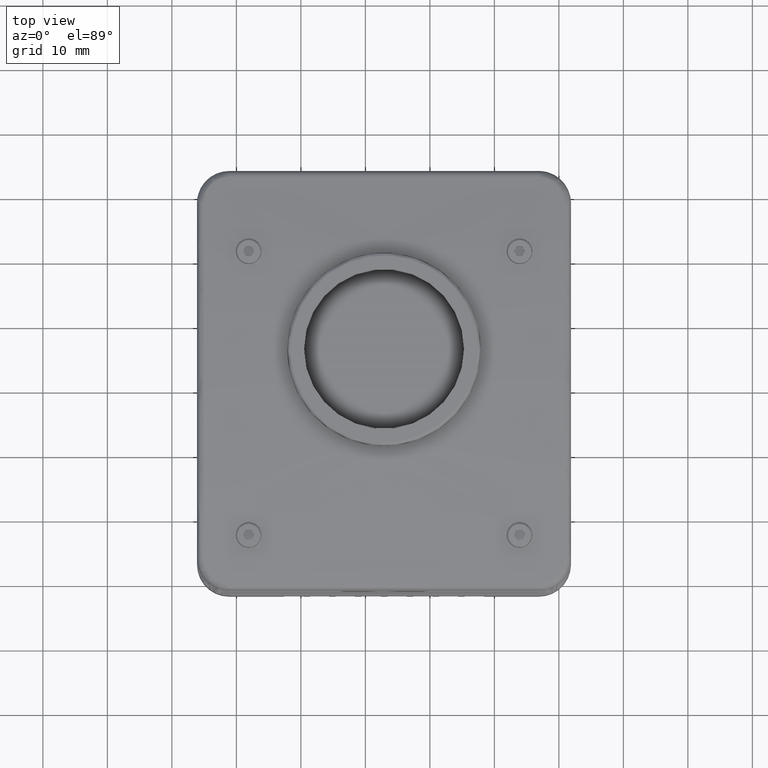
[diagram: clean part render]
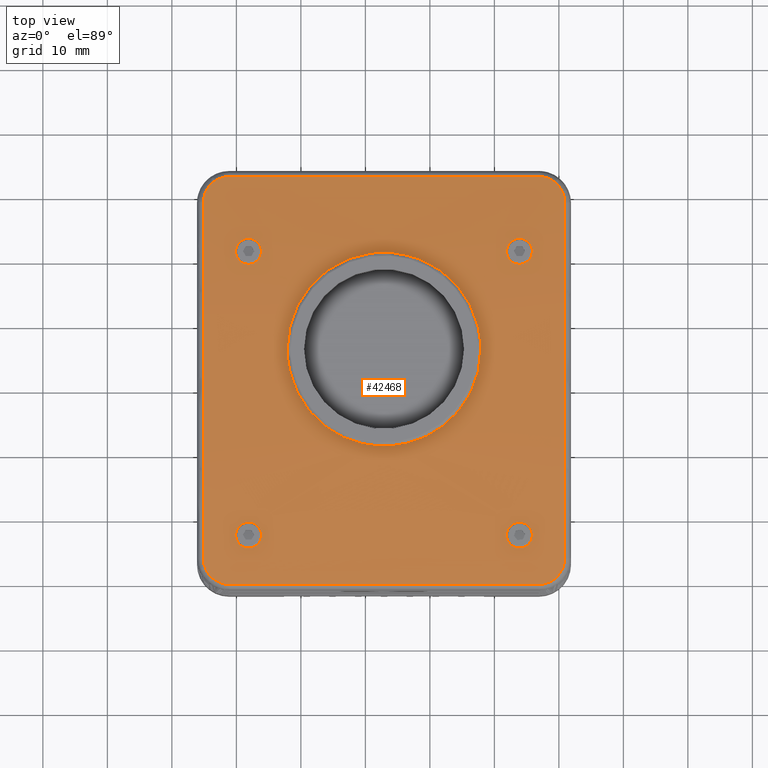
[diagram: same view with one face highlighted and labeled with its STEP entity id]
A machine part, top view. The second image highlights one B-rep face of the part: STEP entity #42468.
In plain terms, the highlighted cylindrical surface (partial cylindrical patch) has radius 246.258 mm, axis along (1, 0, 0).
Its self-contained STEP definition (entity closure, byte-faithful):
#164 = CARTESIAN_POINT ( 'NONE',  ( 17.15199838091619000, -30.88185653860557522, 12.61445700249528024 ) ) ;
#643 = CARTESIAN_POINT ( 'NONE',  ( 12.65794553003132172, -24.85439912461129097, 13.31973789905160999 ) ) ;
#1061 = CARTESIAN_POINT ( 'NONE',  ( 6.335961624409518045, 12.19117774641870078, 14.38803534355767155 ) ) ;
#1711 = CARTESIAN_POINT ( 'NONE',  ( 20.88553785810800179, -26.86554721807585366, 13.10109325036892081 ) ) ;
#1765 = CARTESIAN_POINT ( 'NONE',  ( 15.11676629128098881, 19.14904862155982812, 13.96553119237063179 ) ) ;
#2154 = CARTESIAN_POINT ( 'NONE',  ( 11.93626400583478109, 20.22629602186786713, 13.88248107598919923 ) ) ;
#2289 = CARTESIAN_POINT ( 'NONE',  ( -30.11446214189199821, -23.25342063943100257, 13.48172338023551653 ) ) ;
#2487 = CARTESIAN_POINT ( 'NONE',  ( -26.88323370860873140, 19.14904862163383470, 13.96553119236502916 ) ) ;
#2682 = CARTESIAN_POINT ( 'NONE',  ( -28.63454206280629677, -25.20272848704888702, 13.28302671401471535 ) ) ;
#2734 = CARTESIAN_POINT ( 'NONE',  ( -33.76312621731929653, 31.37998222078914523, 12.74133567024515301 ) ) ;
#2791 = CARTESIAN_POINT ( 'NONE',  ( 7.322697038092282895, 1.423764651721037833, 14.65386630403277124 ) ) ;
#3096 = ORIENTED_EDGE ( 'NONE', *, *, #36131, .T. ) ;
#3176 = CARTESIAN_POINT ( 'NONE',  ( -10.99355484725107424, -8.951581931478942877, 14.46301633084969041 ) ) ;
#3383 = CARTESIAN_POINT ( 'NONE',  ( -26.88705915811398128, -21.65228337191254226, 13.63330965593219446 ) ) ;
#3565 = CARTESIAN_POINT ( 'NONE',  ( -21.77427582853673727, 2.360495848392195839, 14.64884740615454284 ) ) ;
#3833 = CARTESIAN_POINT ( 'NONE',  ( -32.90221694859462076, -30.46834931190274887, 12.66767608023455693 ) ) ;
#3960 = CARTESIAN_POINT ( 'NONE',  ( -35.11446214189199821, 0.7465793605689886592, -231.6045150059094908 ) ) ;
#3964 = CARTESIAN_POINT ( 'NONE',  ( -11.92681194854243998, -8.662756242559215281, 14.47420293897796206 ) ) ;
#4350 = CARTESIAN_POINT ( 'NONE',  ( -6.123836369265465152, -9.428819727217717883, 14.44370754604598162 ) ) ;
#4356 = EDGE_CURVE ( 'NONE', #70281, #48283, #22813, .T. ) ;
#4508 = AXIS2_PLACEMENT_3D ( 'NONE', #56930, #69220, #75187 ) ;
#4671 = CARTESIAN_POINT ( 'NONE',  ( 0.8062653328078575043, 18.29426577951470634, 14.02817385190907018 ) ) ;
#4722 = DIRECTION ( 'NONE',  ( 1.000000000000000000, 1.690636389360119870E-16, 0.000000000000000000 ) ) ;
#4756 = ORIENTED_EDGE ( 'NONE', *, *, #7954, .T. ) ;
#4757 = CARTESIAN_POINT ( 'NONE',  ( 12.56324765355891060, -21.74704678343643849, 13.62458177239563994 ) ) ;
#4836 = EDGE_CURVE ( 'NONE', #69498, #75149, #38759, .T. ) ;
#5066 = CARTESIAN_POINT ( 'NONE',  ( -9.079484532985620859, 20.42553410460161700, 13.86647172096069092 ) ) ;
#5118 = CARTESIAN_POINT ( 'NONE',  ( 18.67329266487444528, 31.96150803304125532, 12.66767608023446812 ) ) ;
#5549 = CARTESIAN_POINT ( 'NONE',  ( 11.93612170713564247, -22.73400636534372765, 13.53215451562674509 ) ) ;
#5818 = CARTESIAN_POINT ( 'NONE',  ( 15.63269430762037615, -24.26217958315425705, 13.38096758599570713 ) ) ;
#5856 = CARTESIAN_POINT ( 'NONE',  ( 7.490287895379887040, 8.969698087180830726, 14.51671294469376861 ) ) ;
#6234 = ORIENTED_EDGE ( 'NONE', *, *, #4356, .T. ) ;
#6248 = CARTESIAN_POINT ( 'NONE',  ( 7.885537858108126130, 6.537583653873920930, 14.58791172228698052 ) ) ;
#6502 = CARTESIAN_POINT ( 'NONE',  ( 19.53420193358178381, -29.88682349958662954, 12.74133567025318037 ) ) ;
#7327 = CARTESIAN_POINT ( 'NONE',  ( 12.87563956458990688, 18.99996234278706453, 13.97660926542275384 ) ) ;
#7370 = CARTESIAN_POINT ( 'NONE',  ( 11.88553785810800001, -23.25342063943100257, 13.48172338023550054 ) ) ;
#7579 = EDGE_CURVE ( 'NONE', #53040, #45356, #46548, .T. ) ;
#7590 = CARTESIAN_POINT ( 'NONE',  ( 20.88553785810800179, -26.86554721807585366, 13.10109325036892081 ) ) ;
#7954 = EDGE_CURVE ( 'NONE', #60504, #50791, #52769, .T. ) ;
#8122 = CARTESIAN_POINT ( 'NONE',  ( 15.62164353065563382, 19.74441562739599121, 13.92014407035631862 ) ) ;
#8160 = CARTESIAN_POINT ( 'NONE',  ( -28.24854630498047214, 22.74644542163443006, 13.66935261879958219 ) ) ;
#8184 = CARTESIAN_POINT ( 'NONE',  ( -28.37713237199256611, -21.26658629709161019, 13.66816072830677165 ) ) ;
#8543 = CARTESIAN_POINT ( 'NONE',  ( -26.51266042314099991, 21.97319806449482726, 13.73755293835787228 ) ) ;
#8753 = CARTESIAN_POINT ( 'NONE',  ( 7.861565506491455579, 4.565026695098848286, 14.62489261526215145 ) ) ;
#8945 = CARTESIAN_POINT ( 'NONE',  ( -26.11446214189199466, 21.01180187585333314, 13.81890647769380642 ) ) ;
#9151 = CARTESIAN_POINT ( 'NONE',  ( -6.610735961794727444, -9.453063464431997076, 14.44269902554001384 ) ) ;
#9227 = CARTESIAN_POINT ( 'NONE',  ( -29.71622873475155657, 19.51989991411704040, 13.93746109433174318 ) ) ;
#9348 = CARTESIAN_POINT ( 'NONE',  ( -28.24862981131195738, -21.25355597667520158, 13.66932846589540951 ) ) ;
#9416 = CARTESIAN_POINT ( 'NONE',  ( -26.79205649417967905, -24.75969375862645094, 13.32956424362680004 ) ) ;
#9530 = CARTESIAN_POINT ( 'NONE',  ( 5.879943274413033549, -1.950711174523080738, 14.63933341548701250 ) ) ;
#9616 = CARTESIAN_POINT ( 'NONE',  ( -27.59316495342199715, 18.81150551277001881, 13.99052436459692927 ) ) ;
#9850 = CARTESIAN_POINT ( 'NONE',  ( -19.02396187249625115, 14.67950498799824466, 14.25984290094675444 ) ) ;
#9930 = CARTESIAN_POINT ( 'NONE',  ( -22.01726605236193279, 3.574745141578771879, 14.63969181953972942 ) ) ;
#10014 = CARTESIAN_POINT ( 'NONE',  ( -30.06373599416532372, 20.22629602186784581, 13.88248107598919034 ) ) ;
#10204 = CARTESIAN_POINT ( 'NONE',  ( -31.11446214189200177, 32.37501525974400352, 12.61445700249543478 ) ) ;
#10245 = CARTESIAN_POINT ( 'NONE',  ( -5.406025436937152762, 20.45117154328260156, 13.86441148440409421 ) ) ;
#10321 = CARTESIAN_POINT ( 'NONE',  ( -21.40545054606002751, 0.9430627392676171894, 14.65471727091783016 ) ) ;
#10440 = B_SPLINE_CURVE_WITH_KNOTS ( 'NONE', 3,
 ( #51152, #32882, #76147, #20175, #21338, #9416, #51539, #38447, #13818, #50767, #50366, #45567, #57495, #44402, #68626, #2682, #26135, #69786, #33273, #39225, #14595, #75752, #2289 ),
 .UNSPECIFIED., .F., .F.,
 ( 4, 2, 2, 1, 2, 2, 2, 2, 2, 2, 2, 4 ),
 ( 0.000000000000000000, 0.1250000000000029421, 0.2500000000000058842, 0.3125000000000067724, 0.3437500000000074940, 0.3750000000000081601, 0.4375000000000079936, 0.5000000000000078826, 0.6250000000000058842, 0.7500000000000039968, 0.8750000000000019984, 1.000000000000000000 ),
 .UNSPECIFIED. ) ;
#10633 = CARTESIAN_POINT ( 'NONE',  ( -21.55144190988290731, 9.670009462541417022, 14.49307085553406615 ) ) ;
#10692 = CARTESIAN_POINT ( 'NONE',  ( 20.88553785810811902, 28.88869422153059219, 13.04129035643093104 ) ) ;
#10713 = CARTESIAN_POINT ( 'NONE',  ( 15.11248853613317067, 22.34806247194847373, 13.70483168141129759 ) ) ;
#10727 = CARTESIAN_POINT ( 'NONE',  ( 15.88553785810811370, -22.98839215172527872, 13.50767621931274753 ) ) ;
#11029 = CARTESIAN_POINT ( 'NONE',  ( -22.11446214189200532, 6.038658297745903347, 14.59763847879172616 ) ) ;
#11399 = ORIENTED_EDGE ( 'NONE', *, *, #7579, .T. ) ;
#11431 = CARTESIAN_POINT ( 'NONE',  ( -11.94423410705991095, 19.75640826646858272, 13.91923354840987770 ) ) ;
#11487 = CARTESIAN_POINT ( 'NONE',  ( 20.78517581521157354, 29.39825597489105036, 12.98205430953047745 ) ) ;
#11511 = CARTESIAN_POINT ( 'NONE',  ( 14.40520700624624162, 22.69598592833485640, 13.67389449438724647 ) ) ;
#11903 = CARTESIAN_POINT ( 'NONE',  ( 15.48733957685904095, 21.97319806449482371, 13.73755293835786873 ) ) ;
#12947 = CARTESIAN_POINT ( 'NONE',  ( 14.14830062729505222, -25.24024324026770927, 13.27902870077937614 ) ) ;
#13099 = CARTESIAN_POINT ( 'NONE',  ( -32.40758804377266245, 32.16863089156166211, 12.64111868462813959 ) ) ;
#13249 = ORIENTED_EDGE ( 'NONE', *, *, #68644, .T. ) ;
#13818 = CARTESIAN_POINT ( 'NONE',  ( -27.22602872122805806, -25.04656791227461454, 13.29950448184490597 ) ) ;
#14190 = CARTESIAN_POINT ( 'NONE',  ( -35.11446214189199821, -26.86554721807585366, 13.10109325036892081 ) ) ;
#14595 = CARTESIAN_POINT ( 'NONE',  ( -30.06379791169468163, -23.77338601145520869, 13.43037247880783447 ) ) ;
#14647 = EDGE_LOOP ( 'NONE', ( #39484, #62179 ) ) ;
#14890 = CARTESIAN_POINT ( 'NONE',  ( -30.11446214189199821, 20.74657936056900098, 13.84051803870175945 ) ) ;
#14915 = CARTESIAN_POINT ( 'NONE',  ( -29.28552137775373509, -21.62238755652164457, 13.63598384088435367 ) ) ;
#15098 = CARTESIAN_POINT ( 'NONE',  ( -13.29879689029108469, -8.128128570800265962, 14.49412241493211440 ) ) ;
#15288 = CARTESIAN_POINT ( 'NONE',  ( -26.16519160709472658, 21.26687967508733479, 13.79768943889806998 ) ) ;
#15494 = CARTESIAN_POINT ( 'NONE',  ( -16.26008846788379003, -6.383431346900523273, 14.55138187112343928 ) ) ;
#15752 = CARTESIAN_POINT ( 'NONE',  ( -33.56304871490326036, -30.05311541163308675, 12.72040113686296792 ) ) ;
#15805 = CARTESIAN_POINT ( 'NONE',  ( -12.40650286088789755, 19.59070527818143859, 13.93203834102146743 ) ) ;
#15876 = CARTESIAN_POINT ( 'NONE',  ( 5.087267682193576057, -3.191931846243637239, 14.62286152841007514 ) ) ;
#16081 = CARTESIAN_POINT ( 'NONE',  ( -26.11446214189199821, -23.25342063943100257, 13.48172338023549521 ) ) ;
#16182 = CARTESIAN_POINT ( 'NONE',  ( -7.618708918039962086, 20.54621195123688793, 13.85676258320007470 ) ) ;
#16257 = CARTESIAN_POINT ( 'NONE',  ( -11.69478663003139829, -8.739268991810686060, 14.47126182592676180 ) ) ;
#16276 = CARTESIAN_POINT ( 'NONE',  ( 12.13837892971137755, -22.24465538133308584, 13.57853452073613276 ) ) ;
#16586 = CARTESIAN_POINT ( 'NONE',  ( -1.839977116306682703, 19.59730376118211481, 13.93153153486985829 ) ) ;
#16657 = CARTESIAN_POINT ( 'NONE',  ( -7.597756725649859710, -9.453770856926839272, 14.44266970026825625 ) ) ;
#16674 = CARTESIAN_POINT ( 'NONE',  ( 12.88199062972224773, -21.52184922864169891, 13.64511759909474620 ) ) ;
#16968 = CARTESIAN_POINT ( 'NONE',  ( -19.72755757046574132, 13.66880964892277106, 14.31482632951563083 ) ) ;
#17054 = CARTESIAN_POINT ( 'NONE',  ( 15.63189053209442925, 21.75675906836380946, 13.75623372952968282 ) ) ;
#17419 = CARTESIAN_POINT ( 'NONE',  ( 17.93384535730843510, 32.27165745080374393, 12.62790944425775308 ) ) ;
#17736 = CARTESIAN_POINT ( 'NONE',  ( 12.13885900909444615, -24.26298981667418886, 13.38088504083211028 ) ) ;
#17854 = CARTESIAN_POINT ( 'NONE',  ( 12.08807199014757572, 21.63353172705940253, 13.76666207485487980 ) ) ;
#17922 = EDGE_CURVE ( 'NONE', #44327, #29170, #51756, .T. ) ;
#18167 = CARTESIAN_POINT ( 'NONE',  ( 7.544189990208258756, 8.730802566024658873, 14.52457857977417532 ) ) ;
#18224 = FACE_OUTER_BOUND ( 'NONE', #75816, .T. ) ;
#18253 = CARTESIAN_POINT ( 'NONE',  ( 12.65419127001136523, 22.34401626471992586, 13.70518567532502807 ) ) ;
#18422 = CARTESIAN_POINT ( 'NONE',  ( 17.92606790863656130, -30.75321344962674885, 12.63108844143563481 ) ) ;
#18811 = CARTESIAN_POINT ( 'NONE',  ( 19.33129599848362901, -30.05529919334043498, 12.72012577323138771 ) ) ;
#19013 = CARTESIAN_POINT ( 'NONE',  ( -101.1501430122208944, 32.37501525974400352, 12.61445700249543478 ) ) ;
#19582 = CARTESIAN_POINT ( 'NONE',  ( 20.88553785810812968, -27.39697600094394403, 13.04112781302277035 ) ) ;
#19636 = CARTESIAN_POINT ( 'NONE',  ( 11.88553785810811370, 20.48137096135847557, 13.86212844946607525 ) ) ;
#19678 = CARTESIAN_POINT ( 'NONE',  ( -28.37700165758149140, 22.73342756399959441, 13.67052128795805999 ) ) ;
#20075 = CARTESIAN_POINT ( 'NONE',  ( -28.63591578181628705, 22.68161144188935907, 13.67516065122723923 ) ) ;
#20175 = CARTESIAN_POINT ( 'NONE',  ( -26.36730569237961674, -24.26217958315426060, 13.38096758599570713 ) ) ;
#20229 = CARTESIAN_POINT ( 'NONE',  ( -32.15499219249225860, 32.24637217076520557, 12.63108844143556553 ) ) ;
#20288 = CARTESIAN_POINT ( 'NONE',  ( 7.885537858107999121, 5.546579360568999029, 14.60723176152298564 ) ) ;
#20428 = CARTESIAN_POINT ( 'NONE',  ( 15.88553785810800001, 20.74657936056900098, 13.84051803870174169 ) ) ;
#20468 = CARTESIAN_POINT ( 'NONE',  ( -27.10445442481185196, 22.49312851329497676, 13.69196319061991041 ) ) ;
#20621 = VERTEX_POINT ( 'NONE', #44178 ) ;
#21059 = CARTESIAN_POINT ( 'NONE',  ( 4.794455624164028151, -3.587115101467619915, 14.61617392486479616 ) ) ;
#21138 = CARTESIAN_POINT ( 'NONE',  ( -26.16515614825689795, 20.22671393786479399, 13.88244769760751218 ) ) ;
#21338 = CARTESIAN_POINT ( 'NONE',  ( -26.51130998088776280, -24.47818563257106561, 13.35877015581990257 ) ) ;
#21445 = CARTESIAN_POINT ( 'NONE',  ( -13.74335697229365927, -7.918350052617787682, 14.50163435386849642 ) ) ;
#21533 = CARTESIAN_POINT ( 'NONE',  ( -28.63395035727551630, 18.79712049893626258, 13.99160172495246535 ) ) ;
#21840 = CARTESIAN_POINT ( 'NONE',  ( -8.088987706960820034, -9.429977719454715412, 14.44365961541502585 ) ) ;
#21842 = EDGE_LOOP ( 'NONE', ( #13249, #50837 ) ) ;
#22097 = CARTESIAN_POINT ( 'NONE',  ( -34.32536497711599566, -29.31908726829677292, 12.81206560506424097 ) ) ;
#22151 = CARTESIAN_POINT ( 'NONE',  ( -20.47005705179707391, 12.40606020187249037, 14.37849974506584161 ) ) ;
#22224 = CARTESIAN_POINT ( 'NONE',  ( 3.665459886051812166, -4.886707662662128193, 14.58963700821765563 ) ) ;
#22241 = CARTESIAN_POINT ( 'NONE',  ( 15.63223703309278889, -22.24388958646938974, 13.57860644796177496 ) ) ;
#22308 = CARTESIAN_POINT ( 'NONE',  ( -27.10696346171490134, 18.99941275953801778, 13.97664948647993555 ) ) ;
#22540 = CARTESIAN_POINT ( 'NONE',  ( -18.39641959767512702, 15.43506107206503586, 14.21563481656117212 ) ) ;
#22595 = CARTESIAN_POINT ( 'NONE',  ( 19.53557834208290700, 31.37893243004834076, 12.74146803244352633 ) ) ;
#22616 = CARTESIAN_POINT ( 'NONE',  ( -4.666648130694960095, -9.260508410882422936, 14.45062446084292418 ) ) ;
#22623 = CARTESIAN_POINT ( 'NONE',  ( 11.88553785810800001, 20.74657936056900098, 13.84051803870175945 ) ) ;
#22813 = B_SPLINE_CURVE_WITH_KNOTS ( 'NONE', 3,
 ( #14890, #68126, #74484, #62964, #43915, #62568, #32395, #50666, #74879, #32780, #20075, #19678, #8160, #38738, #33178, #20468, #56623, #8543, #75658, #15288, #8945, #39129 ),
 .UNSPECIFIED., .F., .F.,
 ( 4, 2, 2, 2, 2, 2, 2, 2, 2, 2, 4 ),
 ( 0.000000000000000000, 0.1250000000000010270, 0.1875000000000011935, 0.2500000000000013878, 0.3749999999999993894, 0.4374999999999995004, 0.4999999999999995559, 0.6249999999999996669, 0.7499999999999997780, 0.8750000000000000000, 1.000000000000000000 ),
 .UNSPECIFIED. ) ;
#22943 = CARTESIAN_POINT ( 'NONE',  ( -17.01249744136433151, 16.82811033182500893, 14.12856216807214693 ) ) ;
#23334 = CARTESIAN_POINT ( 'NONE',  ( -21.32024066528539663, 10.36949161207855497, 14.46603878312971503 ) ) ;
#23413 = CARTESIAN_POINT ( 'NONE',  ( 11.88553785810811547, 21.01146264651963236, 13.81893411967372387 ) ) ;
#23731 = CARTESIAN_POINT ( 'NONE',  ( 6.928667307744970749, 10.84105750171323201, 14.44745431676006220 ) ) ;
#23813 = CARTESIAN_POINT ( 'NONE',  ( 12.29363707622206547, 21.96485487213150734, 13.73822646866878117 ) ) ;
#23993 = VERTEX_POINT ( 'NONE', #59634 ) ;
#24062 = CARTESIAN_POINT ( 'NONE',  ( 7.885537858107999121, 5.546579360568999029, 14.60723176152298564 ) ) ;
#24097 = CARTESIAN_POINT ( 'NONE',  ( 14.53298168289364511, -25.15022516952834764, 13.28856838422746556 ) ) ;
#24191 = FACE_BOUND ( 'NONE', #31450, .T. ) ;
#24407 = EDGE_CURVE ( 'NONE', #75149, #48609, #30298, .T. ) ;
#24483 = CARTESIAN_POINT ( 'NONE',  ( 15.88553785810800001, -23.25342063943100257, 13.48172338023551120 ) ) ;
#24519 = CARTESIAN_POINT ( 'NONE',  ( 6.546284615432723442, 11.74705724269426454, 14.40829593289792143 ) ) ;
#24900 = CARTESIAN_POINT ( 'NONE',  ( 7.788289591307655968, 7.518942739816782073, 14.56279473177365702 ) ) ;
#25657 = VERTEX_POINT ( 'NONE', #76251 ) ;
#25998 = CARTESIAN_POINT ( 'NONE',  ( 12.13916859674144000, 19.73643074174823653, 13.92086077231704877 ) ) ;
#26039 = VERTEX_POINT ( 'NONE', #10204 ) ;
#26135 = CARTESIAN_POINT ( 'NONE',  ( -29.12497715097468642, -24.99968841142409559, 13.30445657988377306 ) ) ;
#26192 = CARTESIAN_POINT ( 'NONE',  ( -33.56022028236316146, 31.54845791440855862, 12.72012577324024818 ) ) ;
#26513 = CARTESIAN_POINT ( 'NONE',  ( -34.61138690134087881, -28.88651645914311672, 12.86509066000546042 ) ) ;
#26857 = CARTESIAN_POINT ( 'NONE',  ( -29.43675234642209304, -21.74704678341722897, 13.62458177239741808 ) ) ;
#27040 = CARTESIAN_POINT ( 'NONE',  ( 7.091488440072062360, 0.7241729397844857141, 14.65412405350917346 ) ) ;
#27326 = B_SPLINE_CURVE_WITH_KNOTS ( 'NONE', 3,
 ( #59971, #52835, #5549, #16276, #28612, #4757, #77837, #16674, #71476, #52442, #77052, #65128, #29804, #54028, #78231, #46082, #29002, #70304, #76661, #22241, #40535, #10727, #46468 ),
 .UNSPECIFIED., .F., .F.,
 ( 4, 2, 2, 1, 2, 2, 2, 2, 2, 2, 2, 4 ),
 ( 0.000000000000000000, 0.1249999999999990841, 0.2499999999999981681, 0.3124999999999977240, 0.3437499999999978351, 0.3749999999999978906, 0.4374999999999981126, 0.4999999999999983347, 0.6249999999999987788, 0.7499999999999991118, 0.8749999999999995559, 1.000000000000000000 ),
 .UNSPECIFIED. ) ;
#27427 = CARTESIAN_POINT ( 'NONE',  ( -20.77529319394699669, -0.6537155625743851228, 14.65013523335219148 ) ) ;
#27738 = CARTESIAN_POINT ( 'NONE',  ( -22.11446214189199821, 5.546579360568999029, 14.60723176152296432 ) ) ;
#27814 = CARTESIAN_POINT ( 'NONE',  ( -20.23332291145434070, -1.755783660371095012, 14.64197246277275610 ) ) ;
#28152 = B_SPLINE_CURVE_WITH_KNOTS ( 'NONE', 3,
 ( #27738, #11029, #76566, #76962, #65035, #58309, #10633, #23334, #41617, #52352, #45989, #22151, #28519, #64248, #16968, #70213, #9850, #65838, #22540, #77363, #34076, #47168, #22943, #71787, #34468, #58696, #46772, #15805, #11431, #57921, #46378, #70602, #5066, #29311, #16182, #40437, #64643, #10245, #65442, #71387, #52748, #70997, #35255, #41226, #16586, #53541, #40836, #34853, #4671, #28910, #29705, #47953, #49525, #36833, #53937, #1061, #24519, #78139, #23731, #60277, #72970, #5856, #18167, #48740, #24900, #6248, #61050 ),
 .UNSPECIFIED., .F., .F.,
 ( 4, 2, 2, 1, 2, 2, 1, 2, 2, 2, 2, 2, 2, 2, 2, 2, 2, 2, 2, 2, 2, 2, 2, 2, 2, 2, 2, 2, 1, 2, 2, 1, 1, 2, 2, 4 ),
 ( 0.000000000000000000, 0.03124999999999990286, 0.06249999999999980571, 0.09374999999999970857, 0.1093749999999996808, 0.1249999999999996669, 0.1562499999999996114, 0.1718749999999995559, 0.1874999999999994726, 0.2187499999999993339, 0.2343749999999993339, 0.2499999999999992228, 0.2812499999999993339, 0.3124999999999994449, 0.3749999999999996669, 0.4062499999999997224, 0.4374999999999997780, 0.4687499999999998890, 0.5000000000000000000, 0.5312500000000001110, 0.5468750000000002220, 0.5625000000000002220, 0.5937500000000002220, 0.6250000000000002220, 0.6562500000000003331, 0.6875000000000003331, 0.7500000000000002220, 0.8125000000000001110, 0.8437500000000001110, 0.8593750000000001110, 0.8750000000000000000, 0.9062500000000000000, 0.9218749999999998890, 0.9296874999999998890, 0.9374999999999998890, 1.000000000000000000 ),
 .UNSPECIFIED. ) ;
#28200 = DIRECTION ( 'NONE',  ( -1.408863657800101781E-16, 1.000000000000000000, 0.000000000000000000 ) ) ;
#28203 = CARTESIAN_POINT ( 'NONE',  ( -22.11446214189200532, 4.555847962378803295, 14.62654648055528739 ) ) ;
#28519 = CARTESIAN_POINT ( 'NONE',  ( -20.10899821122166031, 13.04364099022304124, 14.34688387820834521 ) ) ;
#28593 = CARTESIAN_POINT ( 'NONE',  ( -2.286791628312955904, -8.663959425202179432, 14.47418447585379653 ) ) ;
#28612 = CARTESIAN_POINT ( 'NONE',  ( 12.28249376805710824, -22.02851733768119047, 13.59865529743980872 ) ) ;
#28910 = CARTESIAN_POINT ( 'NONE',  ( 2.032797160038046336, 17.47531853706542648, 14.08576376692348830 ) ) ;
#29002 = CARTESIAN_POINT ( 'NONE',  ( 14.89592131775918027, -21.50707118682776908, 13.64647820732597339 ) ) ;
#29170 = VERTEX_POINT ( 'NONE', #52821 ) ;
#29311 = CARTESIAN_POINT ( 'NONE',  ( -8.105884700460954662, 20.52193339884096801, 13.85872451712369724 ) ) ;
#29364 = CARTESIAN_POINT ( 'NONE',  ( 16.88553785810800179, 32.37501525974400352, 12.61445700249544011 ) ) ;
#29493 = ORIENTED_EDGE ( 'NONE', *, *, #70984, .T. ) ;
#29705 = CARTESIAN_POINT ( 'NONE',  ( 2.789732459355878991, 16.85472294647823333, 14.12760955609154578 ) ) ;
#29718 = ORIENTED_EDGE ( 'NONE', *, *, #64345, .T. ) ;
#29754 = B_SPLINE_CURVE_WITH_KNOTS ( 'NONE', 3,
 ( #20428, #73265, #61351, #62528, #8122, #43105, #32358, #1765, #44658, #61738, #56192, #67318, #49833, #44264, #67700, #7327, #36757, #74047, #25998, #2154, #19636, #49443 ),
 .UNSPECIFIED., .F., .F.,
 ( 4, 2, 2, 2, 2, 2, 2, 2, 2, 2, 4 ),
 ( 0.000000000000000000, 0.1250000000000000278, 0.1875000000000000555, 0.2500000000000000555, 0.3750000000000012768, 0.4375000000000014988, 0.5000000000000016653, 0.6250000000000012212, 0.7500000000000008882, 0.8750000000000004441, 1.000000000000000000 ),
 .UNSPECIFIED. ) ;
#29804 = CARTESIAN_POINT ( 'NONE',  ( 13.62286762800744810, -21.26658629709159598, 13.66816072830676987 ) ) ;
#30119 = CARTESIAN_POINT ( 'NONE',  ( 15.88553785810800001, 20.74657936056900098, 13.84051803870174169 ) ) ;
#30161 = CARTESIAN_POINT ( 'NONE',  ( 17.42008790033810683, 32.37501525974386851, 12.61445700249525359 ) ) ;
#30298 = B_SPLINE_CURVE_WITH_KNOTS ( 'NONE', 3,
 ( #60338, #10692, #11487, #71440, #34909, #22595, #41672, #65492, #5118, #17419, #30161, #29364 ),
 .UNSPECIFIED., .F., .F.,
 ( 4, 2, 2, 2, 2, 4 ),
 ( 0.000000000000000000, 0.2500000000000000555, 0.5000000000000001110, 0.6250000000000001110, 0.7500000000000002220, 1.000000000000000000 ),
 .UNSPECIFIED. ) ;
#30562 = ORIENTED_EDGE ( 'NONE', *, *, #77356, .T. ) ;
#31438 = CARTESIAN_POINT ( 'NONE',  ( 7.765676100024782258, 3.590495431475227317, 14.63807647432432368 ) ) ;
#31450 = EDGE_LOOP ( 'NONE', ( #3096, #6234 ) ) ;
#31608 = CARTESIAN_POINT ( 'NONE',  ( 15.20794350582025878, -24.75969375862645450, 13.32956424362680181 ) ) ;
#32358 = CARTESIAN_POINT ( 'NONE',  ( 15.39294883474416942, 19.42573060742273228, 13.94458824959333576 ) ) ;
#32395 = CARTESIAN_POINT ( 'NONE',  ( -29.62195515265606716, 22.06733368305056686, 13.72933559793491298 ) ) ;
#32421 = CARTESIAN_POINT ( 'NONE',  ( -27.59460028048402691, -21.30404969444064278, 13.66481530883343787 ) ) ;
#32780 = CARTESIAN_POINT ( 'NONE',  ( -28.76143067436895961, 22.64354122473361741, 13.67856599225306624 ) ) ;
#32882 = CARTESIAN_POINT ( 'NONE',  ( -26.11446214189198756, -23.51812178035946843, 13.45580259649763022 ) ) ;
#32994 = CARTESIAN_POINT ( 'NONE',  ( 0.4060178697264337777, -7.469340994318972804, 14.51753490142301750 ) ) ;
#33078 = CARTESIAN_POINT ( 'NONE',  ( -26.60705116531111258, 19.42573060738572011, 13.94458824959613885 ) ) ;
#33178 = CARTESIAN_POINT ( 'NONE',  ( -27.59479299379611206, 22.69598592837622775, 13.67389449438357651 ) ) ;
#33273 = CARTESIAN_POINT ( 'NONE',  ( -29.71665819585994939, -24.47950736623194601, 13.35863387347591846 ) ) ;
#33374 = CARTESIAN_POINT ( 'NONE',  ( -19.03047072878116097, -3.617578367582784171, 14.61670795064638106 ) ) ;
#33456 = CARTESIAN_POINT ( 'NONE',  ( -29.86083140325864704, 19.73643074174821876, 13.92086077231704344 ) ) ;
#33583 = CARTESIAN_POINT ( 'NONE',  ( -27.10407868229895811, -21.50707118677872742, 13.64647820733040717 ) ) ;
#33762 = CARTESIAN_POINT ( 'NONE',  ( -15.03313629908729077, -7.202387192523019621, 14.52584226528682443 ) ) ;
#34076 = CARTESIAN_POINT ( 'NONE',  ( -17.89559027773957567, 15.97861881582975840, 14.18254624515558149 ) ) ;
#34153 = CARTESIAN_POINT ( 'NONE',  ( -9.797337463965428483, -9.213574563149025565, 14.45251470305448471 ) ) ;
#34468 = CARTESIAN_POINT ( 'NONE',  ( -15.86597838191275400, 17.73893899609034364, 14.06721609474506884 ) ) ;
#34541 = CARTESIAN_POINT ( 'NONE',  ( 6.241141869138078668, -1.312904418209156931, 14.64605871562433848 ) ) ;
#34676 = CARTESIAN_POINT ( 'NONE',  ( -101.1501430122208944, -30.88185653860600155, 12.61445700249543478 ) ) ;
#34853 = CARTESIAN_POINT ( 'NONE',  ( 0.3827271466779531561, 18.54805979362642177, 14.00986834689098082 ) ) ;
#34909 = CARTESIAN_POINT ( 'NONE',  ( 20.09644069349391060, 30.81224598931530423, 12.81206560507911085 ) ) ;
#34936 = CARTESIAN_POINT ( 'NONE',  ( 15.88553785810811014, 21.01180187585333314, 13.81890647769380109 ) ) ;
#35255 = CARTESIAN_POINT ( 'NONE',  ( -3.234037749738963186, 20.04439001868595938, 13.89676591520783866 ) ) ;
#35423 = EDGE_LOOP ( 'NONE', ( #59254, #4756 ) ) ;
#35713 = FACE_BOUND ( 'NONE', #21842, .T. ) ;
#35945 = CARTESIAN_POINT ( 'NONE',  ( -30.11446214189199821, 20.74657936056900098, 13.84051803870175945 ) ) ;
#36131 = EDGE_CURVE ( 'NONE', #48283, #70281, #74307, .T. ) ;
#36757 = CARTESIAN_POINT ( 'NONE',  ( 12.65874490046064871, 19.14496411423595390, 13.96583953688491064 ) ) ;
#36796 = CARTESIAN_POINT ( 'NONE',  ( 15.83492949296305596, -23.77290652555777584, 13.43042029225156320 ) ) ;
#36833 = CARTESIAN_POINT ( 'NONE',  ( 5.625027658707915990, 13.48060075964156290, 14.32490035459223243 ) ) ;
#37562 = CARTESIAN_POINT ( 'NONE',  ( 14.40741121322757046, -25.18834352977607338, 13.28453069010568655 ) ) ;
#37860 = CARTESIAN_POINT ( 'NONE',  ( 20.78451211876072335, -27.90815331808156330, 12.98169680306174989 ) ) ;
#38112 = CARTESIAN_POINT ( 'NONE',  ( -31.38092266474792069, 32.37501525974385430, 12.61445700249524826 ) ) ;
#38377 = CARTESIAN_POINT ( 'NONE',  ( -28.63614703601200873, -21.31844743428598576, 13.66350067619272224 ) ) ;
#38447 = CARTESIAN_POINT ( 'NONE',  ( -27.11075798916379043, -24.98490084299024261, 13.30599137148304223 ) ) ;
#38554 = DIRECTION ( 'NONE',  ( 1.000000000000000000, 1.549750023580109963E-16, 0.000000000000000000 ) ) ;
#38738 = CARTESIAN_POINT ( 'NONE',  ( -27.85068281448716832, 22.74684563316231589, 13.66931672156391819 ) ) ;
#38757 = VECTOR ( 'NONE', #74200, 1000.000000000000000 ) ;
#38759 = CIRCLE ( 'NONE', #4508, 246.2585313167245147 ) ;
#38813 = CARTESIAN_POINT ( 'NONE',  ( -33.76450262594799767, -29.88577370884943818, 12.74146803245112736 ) ) ;
#39025 = CARTESIAN_POINT ( 'NONE',  ( -26.11446214189199466, 20.48171128315953737, 13.86210071846684500 ) ) ;
#39129 = CARTESIAN_POINT ( 'NONE',  ( -26.11446214189199821, 20.74657936056900098, 13.84051803870174169 ) ) ;
#39225 = CARTESIAN_POINT ( 'NONE',  ( -29.86114099090547924, -24.26298981670525023, 13.38088504082897501 ) ) ;
#39342 = CARTESIAN_POINT ( 'NONE',  ( -14.60976943774131875, -7.455984814771757563, 14.51747851637261455 ) ) ;
#39484 = ORIENTED_EDGE ( 'NONE', *, *, #68287, .T. ) ;
#39718 = CARTESIAN_POINT ( 'NONE',  ( 16.88553785810800179, 32.37501525974400352, 12.61445700249544011 ) ) ;
#39726 = CARTESIAN_POINT ( 'NONE',  ( -20.56490805768757468, -1.097976390829149551, 14.64720824575197966 ) ) ;
#40117 = CARTESIAN_POINT ( 'NONE',  ( 3.144568367436512801, -5.407582307326244120, 14.57735108077004149 ) ) ;
#40204 = CARTESIAN_POINT ( 'NONE',  ( -26.11446214189199821, 20.74657936056900098, 13.84051803870174169 ) ) ;
#40437 = CARTESIAN_POINT ( 'NONE',  ( -6.631246685031225496, 20.54693939796045044, 13.85670390411101671 ) ) ;
#40516 = CARTESIAN_POINT ( 'NONE',  ( 2.782052082626414347, -5.736292435491273878, 14.56886474998871428 ) ) ;
#40535 = CARTESIAN_POINT ( 'NONE',  ( 15.83487769310505655, -22.73347608399184949, 13.53220542697236084 ) ) ;
#40732 = CARTESIAN_POINT ( 'NONE',  ( -26.16512230689505714, -22.73347608399184949, 13.53220542697235906 ) ) ;
#40836 = CARTESIAN_POINT ( 'NONE',  ( -0.4836747278543634398, 19.01057809794227538, 13.97590841075087198 ) ) ;
#40908 = CARTESIAN_POINT ( 'NONE',  ( 5.628563155449615607, -2.370278601021718057, 14.63438009000678797 ) ) ;
#41185 = ORIENTED_EDGE ( 'NONE', *, *, #17922, .T. ) ;
#41226 = CARTESIAN_POINT ( 'NONE',  ( -2.298766288528656165, 19.76111134911065648, 13.91886881600395220 ) ) ;
#41307 = CARTESIAN_POINT ( 'NONE',  ( 15.88553785810800001, 20.74657936056900098, 13.84051803870174169 ) ) ;
#41617 = CARTESIAN_POINT ( 'NONE',  ( -21.15451304383898190, 10.83230944916991412, 14.44750374383493430 ) ) ;
#41672 = CARTESIAN_POINT ( 'NONE',  ( 19.33412443099766875, 31.54627413286203463, 12.72040113685147311 ) ) ;
#42365 = CARTESIAN_POINT ( 'NONE',  ( 14.88924201083620069, -24.98490084299023195, 13.30599137148304045 ) ) ;
#42459 = CYLINDRICAL_SURFACE ( 'NONE', #70518, 246.2585313167245147 ) ;
#42468 = ADVANCED_FACE ( 'NONE', ( #35713, #59931, #78592, #24191, #72644, #18224 ), #42459, .T. ) ;
#42634 = CARTESIAN_POINT ( 'NONE',  ( -35.11446214189199821, 28.35870593921385208, 13.10109325036891548 ) ) ;
#42748 = CARTESIAN_POINT ( 'NONE',  ( 15.88553785810812791, -23.51812178035946488, 13.45580259649763555 ) ) ;
#43053 = CARTESIAN_POINT ( 'NONE',  ( 20.09321447147458528, -29.32302337405648984, 12.81157838070029342 ) ) ;
#43105 = CARTESIAN_POINT ( 'NONE',  ( 15.47739904217896623, 19.52824972192923880, 13.93677450722905853 ) ) ;
#43427 = ORIENTED_EDGE ( 'NONE', *, *, #45446, .T. ) ;
#43522 = CARTESIAN_POINT ( 'NONE',  ( 14.71342676825204521, -25.07517947320226170, 13.29648876853985939 ) ) ;
#43915 = CARTESIAN_POINT ( 'NONE',  ( -29.85057234867237597, 21.74873240726351042, 13.75682175550763375 ) ) ;
#44178 = CARTESIAN_POINT ( 'NONE',  ( -30.11446214189199821, -23.25342063943100257, 13.48172338023551653 ) ) ;
#44264 = CARTESIAN_POINT ( 'NONE',  ( 13.62178609686790409, 18.74631607407394185, 13.99530935189549652 ) ) ;
#44327 = VERTEX_POINT ( 'NONE', #24062 ) ;
#44330 = CARTESIAN_POINT ( 'NONE',  ( -29.00271668995396723, -21.46018444036575445, 13.65070888588009268 ) ) ;
#44402 = CARTESIAN_POINT ( 'NONE',  ( -27.98023769189411425, -25.25328346789058642, 13.27764314202571505 ) ) ;
#44456 = CARTESIAN_POINT ( 'NONE',  ( -35.11446214189200532, 28.89013472198515231, 13.04112781303369317 ) ) ;
#44658 = CARTESIAN_POINT ( 'NONE',  ( 14.89303653827325036, 18.99941275953598563, 13.97664948648009009 ) ) ;
#44762 = CARTESIAN_POINT ( 'NONE',  ( -32.16276964122032922, -30.77849872966542222, 12.62790944425782058 ) ) ;
#45032 = VERTEX_POINT ( 'NONE', #51611 ) ;
#45284 = CARTESIAN_POINT ( 'NONE',  ( -3.703326712929627007, -9.068649422894214496, 14.45835246416773323 ) ) ;
#45356 = VERTEX_POINT ( 'NONE', #14190 ) ;
#45365 = CARTESIAN_POINT ( 'NONE',  ( -27.46765174961430134, 18.84956483710183051, 13.98772565260810552 ) ) ;
#45446 = EDGE_CURVE ( 'NONE', #45356, #67407, #76018, .T. ) ;
#45547 = CARTESIAN_POINT ( 'NONE',  ( -35.11446214189199111, -27.39553550047680730, 13.04129035642142398 ) ) ;
#45567 = CARTESIAN_POINT ( 'NONE',  ( -27.59258878680778793, -25.18834352978342395, 13.28453069010490672 ) ) ;
#45673 = CARTESIAN_POINT ( 'NONE',  ( -20.87563394991077459, -0.4275570705231317437, 14.65132154837722211 ) ) ;
#45989 = CARTESIAN_POINT ( 'NONE',  ( -20.78354542071873112, 11.74311260991372663, 14.40879013725633584 ) ) ;
#46062 = CARTESIAN_POINT ( 'NONE',  ( -12.61492599336913578, -8.410697918842902965, 14.48371592528743790 ) ) ;
#46082 = CARTESIAN_POINT ( 'NONE',  ( 14.40539971945782227, -21.30404969439158336, 13.66481530883786988 ) ) ;
#46148 = CARTESIAN_POINT ( 'NONE',  ( -30.11446214189198756, 20.48137096135844715, 13.86212844946606815 ) ) ;
#46328 = CARTESIAN_POINT ( 'NONE',  ( -33.13114130483632636, -30.34472389028628569, 12.68346404422093165 ) ) ;
#46378 = CARTESIAN_POINT ( 'NONE',  ( -10.52770583777146207, 20.16132718176696415, 13.88752375705964326 ) ) ;
#46449 = CARTESIAN_POINT ( 'NONE',  ( -5.150750061962119375, -9.332541457451819511, 14.44767029450209250 ) ) ;
#46468 = CARTESIAN_POINT ( 'NONE',  ( 15.88553785810800001, -23.25342063943100257, 13.48172338023551120 ) ) ;
#46548 = CIRCLE ( 'NONE', #56719, 246.2585313167245147 ) ;
#46772 = CARTESIAN_POINT ( 'NONE',  ( -13.77214549695539780, 19.02419757343095696, 13.97507774969939298 ) ) ;
#46847 = CARTESIAN_POINT ( 'NONE',  ( -21.60154877501499371, 1.649368544401594638, 14.65247570734156035 ) ) ;
#47168 = CARTESIAN_POINT ( 'NONE',  ( -17.37487376863602151, 16.49944260081879222, 14.14990017015435519 ) ) ;
#47338 = ORIENTED_EDGE ( 'NONE', *, *, #59717, .T. ) ;
#47369 = DIRECTION ( 'NONE',  ( 1.000000000000000000, 1.601283208593974774E-16, 0.000000000000000000 ) ) ;
#47953 = CARTESIAN_POINT ( 'NONE',  ( 4.181685382569509279, 15.46449272720916390, 14.21479334408798323 ) ) ;
#48029 = CARTESIAN_POINT ( 'NONE',  ( 15.83480839290537645, 21.26687967508735611, 13.79768943889806820 ) ) ;
#48283 = VERTEX_POINT ( 'NONE', #40204 ) ;
#48315 = CARTESIAN_POINT ( 'NONE',  ( 12.87502284899917804, -24.99968841138899833, 13.30445657988747321 ) ) ;
#48609 = VERTEX_POINT ( 'NONE', #39718 ) ;
#48740 = CARTESIAN_POINT ( 'NONE',  ( 7.569480991006596327, 8.612051704149608966, 14.52840306353280120 ) ) ;
#48991 = CARTESIAN_POINT ( 'NONE',  ( 17.41339649558348057, -30.85612918241171698, 12.61779304788295697 ) ) ;
#49085 = CARTESIAN_POINT ( 'NONE',  ( 11.93620208830537877, -23.77338601148625941, 13.43037247880470275 ) ) ;
#49443 = CARTESIAN_POINT ( 'NONE',  ( 11.88553785810800001, 20.74657936056900098, 13.84051803870175945 ) ) ;
#49525 = CARTESIAN_POINT ( 'NONE',  ( 4.802142703321521822, 14.70992213955786809, 14.25919293372679064 ) ) ;
#49641 = CARTESIAN_POINT ( 'NONE',  ( -31.11446214189200177, 32.37501525974400352, 12.61445700249543478 ) ) ;
#49833 = CARTESIAN_POINT ( 'NONE',  ( 14.01957493269371646, 18.74671178227674062, 13.99528035045612384 ) ) ;
#49966 = DIRECTION ( 'NONE',  ( -1.690636389360122088E-16, 1.000000000000000000, 0.000000000000000000 ) ) ;
#50155 = B_SPLINE_CURVE_WITH_KNOTS ( 'NONE', 3,
 ( #62199, #68934, #63764, #74508, #56646, #26857, #14915, #75681, #44330, #68555, #69717, #38377, #8184, #9348, #62592, #32421, #33583, #3383, #50691, #74904, #40732, #52640, #16081 ),
 .UNSPECIFIED., .F., .F.,
 ( 4, 2, 2, 1, 2, 2, 2, 2, 2, 2, 2, 4 ),
 ( 0.000000000000000000, 0.1250000000000048295, 0.2500000000000096589, 0.3125000000000114353, 0.3437500000000112133, 0.3750000000000109912, 0.4375000000000105471, 0.5000000000000101030, 0.6250000000000075495, 0.7500000000000051070, 0.8750000000000025535, 1.000000000000000000 ),
 .UNSPECIFIED. ) ;
#50366 = CARTESIAN_POINT ( 'NONE',  ( -27.46701831710435826, -25.15022516952751630, 13.28856838422755438 ) ) ;
#50666 = CARTESIAN_POINT ( 'NONE',  ( -29.34580873001666745, 22.34401626470160807, 13.70518567532662679 ) ) ;
#50691 = CARTESIAN_POINT ( 'NONE',  ( -26.51230802112638330, -22.02726121361758871, 13.59877184416983908 ) ) ;
#50767 = CARTESIAN_POINT ( 'NONE',  ( -27.28657323174895311, -25.07517947320269514, 13.29648876853981498 ) ) ;
#50791 = VERTEX_POINT ( 'NONE', #30119 ) ;
#50837 = ORIENTED_EDGE ( 'NONE', *, *, #70592, .T. ) ;
#51152 = CARTESIAN_POINT ( 'NONE',  ( -26.11446214189199821, -23.25342063943100257, 13.48172338023549521 ) ) ;
#51262 = CARTESIAN_POINT ( 'NONE',  ( -9.552993198273162179, -9.255969901287766533, 14.45079291470752025 ) ) ;
#51539 = CARTESIAN_POINT ( 'NONE',  ( -26.94327403130911947, -24.88435964686155799, 13.31654971760690565 ) ) ;
#51611 = CARTESIAN_POINT ( 'NONE',  ( 15.88553785810800001, -23.25342063943100257, 13.48172338023551120 ) ) ;
#51647 = CARTESIAN_POINT ( 'NONE',  ( -18.40972466808389640, -4.372388045065541462, 14.60178916176058195 ) ) ;
#51731 = CARTESIAN_POINT ( 'NONE',  ( -27.85199922764759606, 18.75972141587573816, 13.99432789360503371 ) ) ;
#51756 = B_SPLINE_CURVE_WITH_KNOTS ( 'NONE', 3,
 ( #20288, #63167, #8753, #31438, #55659, #77034, #2791, #27040, #69896, #52424, #58770, #34541, #9530, #40908, #70287, #15876, #21059, #75479, #76641, #57606, #22224, #40117, #40516, #75864, #65110, #32994, #63560, #57228, #28593, #58388, #45284, #22616, #46449, #4350, #9151, #16657, #21840, #69506, #70673, #51262, #34153, #76256, #3176, #16257, #3964, #52820, #46062, #15098, #21445, #39342, #33762, #15494, #64323, #51647, #33374, #64717, #27814, #39726, #27427, #45673, #63937, #10321, #46847, #57997, #3565, #9930, #28203, #52044 ),
 .UNSPECIFIED., .F., .F.,
 ( 4, 2, 2, 1, 2, 2, 1, 2, 2, 2, 2, 2, 2, 2, 2, 2, 2, 2, 2, 2, 2, 2, 2, 2, 2, 2, 2, 2, 2, 1, 2, 2, 1, 2, 2, 4 ),
 ( 0.000000000000000000, 0.03125000000000005551, 0.06250000000000009714, 0.09375000000000013878, 0.1093750000000001665, 0.1250000000000001943, 0.1562500000000002498, 0.1718750000000002776, 0.1875000000000003053, 0.2187500000000003886, 0.2343750000000004441, 0.2500000000000004441, 0.2812500000000004996, 0.3125000000000005551, 0.3750000000000006661, 0.4062500000000007216, 0.4375000000000007772, 0.4687500000000007772, 0.5000000000000007772, 0.5312500000000007772, 0.5468750000000007772, 0.5625000000000006661, 0.5937500000000006661, 0.6093750000000007772, 0.6250000000000007772, 0.6562500000000007772, 0.6875000000000008882, 0.7500000000000007772, 0.8125000000000006661, 0.8437500000000006661, 0.8593750000000006661, 0.8750000000000005551, 0.9062500000000003331, 0.9218750000000003331, 0.9375000000000002220, 1.000000000000000000 ),
 .UNSPECIFIED. ) ;
#52044 = CARTESIAN_POINT ( 'NONE',  ( -22.11446214189199821, 5.546579360568999029, 14.60723176152296432 ) ) ;
#52132 = CARTESIAN_POINT ( 'NONE',  ( -26.31698974734189633, 19.85963770454918986, 13.91120813739374640 ) ) ;
#52352 = CARTESIAN_POINT ( 'NONE',  ( -21.06532014187123281, 11.06325103113315755, 14.43792438836760361 ) ) ;
#52424 = CARTESIAN_POINT ( 'NONE',  ( 6.836566388827440832, 0.03033573344592023491, 14.65307905063516536 ) ) ;
#52442 = CARTESIAN_POINT ( 'NONE',  ( 13.05786224279585461, -21.43156529199664462, 13.65329786934172063 ) ) ;
#52640 = CARTESIAN_POINT ( 'NONE',  ( -26.11446214189198045, -22.98839215172529649, 13.50767621931274931 ) ) ;
#52748 = CARTESIAN_POINT ( 'NONE',  ( -4.430595770999342875, 20.30655429478122542, 13.87598102114912635 ) ) ;
#52769 = B_SPLINE_CURVE_WITH_KNOTS ( 'NONE', 3,
 ( #22623, #23413, #54017, #17854, #78219, #23813, #54419, #18253, #53221, #77441, #53620, #77041, #66320, #71080, #11511, #65916, #10713, #11903, #17054, #48029, #34936, #41307 ),
 .UNSPECIFIED., .F., .F.,
 ( 4, 2, 2, 2, 2, 2, 2, 2, 2, 2, 4 ),
 ( 0.000000000000000000, 0.1249999999999994726, 0.1874999999999992228, 0.2499999999999989453, 0.3749999999999984457, 0.4374999999999985567, 0.4999999999999986677, 0.6249999999999988898, 0.7499999999999992228, 0.8749999999999996669, 1.000000000000000000 ),
 .UNSPECIFIED. ) ;
#52820 = CARTESIAN_POINT ( 'NONE',  ( -12.38742536739970745, -8.498246039127250739, 14.48043826271459800 ) ) ;
#52821 = CARTESIAN_POINT ( 'NONE',  ( -22.11446214189199821, 5.546579360568999029, 14.60723176152296432 ) ) ;
#52835 = CARTESIAN_POINT ( 'NONE',  ( 11.88553785810811902, -22.98873790059881372, 13.50764236195291979 ) ) ;
#53040 = VERTEX_POINT ( 'NONE', #42634 ) ;
#53221 = CARTESIAN_POINT ( 'NONE',  ( 12.87784338727174926, 22.49363860220941902, 13.69191735065259508 ) ) ;
#53267 = CARTESIAN_POINT ( 'NONE',  ( 20.88553785810800179, 28.35870593921379879, 13.10109325036892081 ) ) ;
#53541 = CARTESIAN_POINT ( 'NONE',  ( -0.9282155804512819408, 19.22042225126142867, 13.96017522897269991 ) ) ;
#53620 = CARTESIAN_POINT ( 'NONE',  ( 13.36408421815017888, 22.68161144188250233, 13.67516065122785029 ) ) ;
#53912 = EDGE_CURVE ( 'NONE', #20621, #23993, #50155, .T. ) ;
#53937 = CARTESIAN_POINT ( 'NONE',  ( 6.004484139348305050, 12.84877033781658717, 14.35713220581535410 ) ) ;
#54017 = CARTESIAN_POINT ( 'NONE',  ( 11.93625216037117909, 21.26650396917552399, 13.79772059899685210 ) ) ;
#54028 = CARTESIAN_POINT ( 'NONE',  ( 13.75137018865824245, -21.25355597667518737, 13.66932846589540773 ) ) ;
#54082 = B_SPLINE_CURVE_WITH_KNOTS ( 'NONE', 3,
 ( #24483, #42748, #36796, #5818, #61773, #31608, #78498, #42365, #73701, #43522, #24097, #37562, #12947, #55834, #55070, #67357, #48315, #643, #55449, #17736, #49085, #54698, #7370 ),
 .UNSPECIFIED., .F., .F.,
 ( 4, 2, 2, 1, 2, 2, 2, 2, 2, 2, 2, 4 ),
 ( 0.000000000000000000, 0.1250000000000019706, 0.2500000000000039413, 0.3125000000000046629, 0.3437500000000045519, 0.3750000000000043854, 0.4375000000000043299, 0.5000000000000042188, 0.6250000000000032196, 0.7500000000000021094, 0.8750000000000011102, 1.000000000000000000 ),
 .UNSPECIFIED. ) ;
#54419 = CARTESIAN_POINT ( 'NONE',  ( 12.37804484732977706, 22.06733368304141862, 13.72933559793571057 ) ) ;
#54597 = CARTESIAN_POINT ( 'NONE',  ( 16.88553785810800179, -30.88185653860600155, 12.61445700249543478 ) ) ;
#54698 = CARTESIAN_POINT ( 'NONE',  ( 11.88553785810812080, -23.51846630363187174, 13.45576885915444088 ) ) ;
#54950 = EDGE_LOOP ( 'NONE', ( #29493, #41185 ) ) ;
#55070 = CARTESIAN_POINT ( 'NONE',  ( 13.62161814236278623, -25.25369327303907241, 13.27759963157016188 ) ) ;
#55281 = VERTEX_POINT ( 'NONE', #60385 ) ;
#55449 = CARTESIAN_POINT ( 'NONE',  ( 12.28334180416810995, -24.47950736626950530, 13.35863387347202647 ) ) ;
#55600 = CARTESIAN_POINT ( 'NONE',  ( -35.01343640254463452, 29.40131203912265079, 12.98169680307329443 ) ) ;
#55659 = CARTESIAN_POINT ( 'NONE',  ( 7.694021828922709361, 3.106895878613577633, 14.64318004373907911 ) ) ;
#55834 = CARTESIAN_POINT ( 'NONE',  ( 14.01976230815178148, -25.25328346789712342, 13.27764314202502050 ) ) ;
#56192 = CARTESIAN_POINT ( 'NONE',  ( 14.40683504654431246, 18.81150551276316207, 13.99052436459743554 ) ) ;
#56383 = CARTESIAN_POINT ( 'NONE',  ( -31.64232077943917432, 32.34928790355005646, 12.61779304788290901 ) ) ;
#56623 = CARTESIAN_POINT ( 'NONE',  ( -26.88751146386700697, 22.34806247194846662, 13.70483168141129937 ) ) ;
#56646 = CARTESIAN_POINT ( 'NONE',  ( -29.71750623198059671, -22.02851733771964504, 13.59865529743627022 ) ) ;
#56719 = AXIS2_PLACEMENT_3D ( 'NONE', #3960, #38554, #28200 ) ;
#56912 = CARTESIAN_POINT ( 'NONE',  ( -28.37821390316462455, 18.74631607408766953, 13.99530935189448932 ) ) ;
#56930 = CARTESIAN_POINT ( 'NONE',  ( 20.88553785810800179, 0.7465793605689975410, -231.6045150059094908 ) ) ;
#57006 = EDGE_CURVE ( 'NONE', #48609, #26039, #67859, .T. ) ;
#57228 = CARTESIAN_POINT ( 'NONE',  ( -1.824609797618022666, -8.498366023980194583, 14.48049243975089517 ) ) ;
#57495 = CARTESIAN_POINT ( 'NONE',  ( -27.85169937266939399, -25.24024324026035160, 13.27902870078015241 ) ) ;
#57606 = CARTESIAN_POINT ( 'NONE',  ( 3.836254228383050524, -4.707387283019072832, 14.59368100279065850 ) ) ;
#57694 = CARTESIAN_POINT ( 'NONE',  ( -30.11446214189199821, 20.74657936056900098, 13.84051803870175945 ) ) ;
#57695 = ORIENTED_EDGE ( 'NONE', *, *, #24407, .T. ) ;
#57921 = CARTESIAN_POINT ( 'NONE',  ( -11.00558751579295880, 20.04156935621199409, 13.89698816721621810 ) ) ;
#57997 = CARTESIAN_POINT ( 'NONE',  ( -21.72081258279834515, 2.123735410527754830, 14.65027975892492762 ) ) ;
#58130 = LINE ( 'NONE', #34676, #62034 ) ;
#58309 = CARTESIAN_POINT ( 'NONE',  ( -21.73047259176394519, 8.954764170094989595, 14.51765846186078335 ) ) ;
#58388 = CARTESIAN_POINT ( 'NONE',  ( -3.225289138479868090, -8.948929643571156944, 14.46312139519285545 ) ) ;
#58475 = CARTESIAN_POINT ( 'NONE',  ( -26.37835646930857081, 19.74441562745956702, 13.92014407035140877 ) ) ;
#58696 = CARTESIAN_POINT ( 'NONE',  ( -14.63714788775165232, 18.56123745436888228, 14.00941825132916918 ) ) ;
#58770 = CARTESIAN_POINT ( 'NONE',  ( 6.554725712702843765, -0.6497347402148403450, 14.65047501444860778 ) ) ;
#59254 = ORIENTED_EDGE ( 'NONE', *, *, #65332, .T. ) ;
#59634 = CARTESIAN_POINT ( 'NONE',  ( -26.11446214189199821, -23.25342063943100257, 13.48172338023549521 ) ) ;
#59717 = EDGE_CURVE ( 'NONE', #67407, #55281, #58130, .T. ) ;
#59931 = FACE_BOUND ( 'NONE', #14647, .T. ) ;
#59971 = CARTESIAN_POINT ( 'NONE',  ( 11.88553785810800001, -23.25342063943100257, 13.48172338023550054 ) ) ;
#60277 = CARTESIAN_POINT ( 'NONE',  ( 7.176354138828726192, 10.15061751187857908, 14.47517238241141158 ) ) ;
#60338 = CARTESIAN_POINT ( 'NONE',  ( 20.88553785810800179, 28.35870593921379879, 13.10109325036892081 ) ) ;
#60385 = CARTESIAN_POINT ( 'NONE',  ( 16.88553785810800179, -30.88185653860600155, 12.61445700249543478 ) ) ;
#60504 = VERTEX_POINT ( 'NONE', #62724 ) ;
#60917 = CARTESIAN_POINT ( 'NONE',  ( 18.89896688216849796, -30.34669176092260301, 12.68321351370205541 ) ) ;
#61050 = CARTESIAN_POINT ( 'NONE',  ( 7.885537858107999121, 5.546579360568999029, 14.60723176152298564 ) ) ;
#61351 = CARTESIAN_POINT ( 'NONE',  ( 15.83484385179085763, 20.22671393794959016, 13.88244769760086506 ) ) ;
#61738 = CARTESIAN_POINT ( 'NONE',  ( 14.53234825039164946, 18.84956483710284658, 13.98772565260802736 ) ) ;
#61773 = CARTESIAN_POINT ( 'NONE',  ( 15.48869001911205423, -24.47818563257106561, 13.35877015581990790 ) ) ;
#62034 = VECTOR ( 'NONE', #47369, 1000.000000000000000 ) ;
#62179 = ORIENTED_EDGE ( 'NONE', *, *, #53912, .T. ) ;
#62199 = CARTESIAN_POINT ( 'NONE',  ( -30.11446214189199821, -23.25342063943100257, 13.48172338023551653 ) ) ;
#62328 = CARTESIAN_POINT ( 'NONE',  ( -32.89736471832993203, 31.96388009169664457, 12.66737251774924822 ) ) ;
#62528 = CARTESIAN_POINT ( 'NONE',  ( 15.68301025263423654, 19.85963770450680599, 13.91120813739706819 ) ) ;
#62568 = CARTESIAN_POINT ( 'NONE',  ( -29.70636292378289767, 21.96485487211929311, 13.73822646866984520 ) ) ;
#62592 = CARTESIAN_POINT ( 'NONE',  ( -27.85057555940194618, -21.25315161422838273, 13.66936473545227493 ) ) ;
#62723 = CARTESIAN_POINT ( 'NONE',  ( -33.12789116604802331, 31.83985048199101797, 12.68321351371096384 ) ) ;
#62724 = CARTESIAN_POINT ( 'NONE',  ( 11.88553785810800001, 20.74657936056900098, 13.84051803870175945 ) ) ;
#62964 = CARTESIAN_POINT ( 'NONE',  ( -29.91192800985583489, 21.63353172705121352, 13.76666207485557436 ) ) ;
#63036 = CARTESIAN_POINT ( 'NONE',  ( -35.11446214189199821, -26.86554721807585366, 13.10109325036892081 ) ) ;
#63108 = CARTESIAN_POINT ( 'NONE',  ( -34.32213875535149583, 30.81618209506567396, 12.81157838071634991 ) ) ;
#63167 = CARTESIAN_POINT ( 'NONE',  ( 7.885537858108126130, 5.054635930762836793, 14.61682240248152986 ) ) ;
#63249 = CARTESIAN_POINT ( 'NONE',  ( -26.52260095778527216, 19.52824972199289277, 13.93677450722419486 ) ) ;
#63560 = CARTESIAN_POINT ( 'NONE',  ( -0.4592650786987300671, -7.932246084052973600, 14.50132577985342763 ) ) ;
#63642 = CARTESIAN_POINT ( 'NONE',  ( -29.12436043541005759, 18.99996234278705032, 13.97660926542275384 ) ) ;
#63764 = CARTESIAN_POINT ( 'NONE',  ( -30.06387829286425983, -22.73400636534373476, 13.53215451562674687 ) ) ;
#63937 = CARTESIAN_POINT ( 'NONE',  ( -21.15774476526532411, 0.2524998505981712604, 14.65393800691365200 ) ) ;
#64194 = CARTESIAN_POINT ( 'NONE',  ( -35.01410009902487985, -27.90509725376611527, 12.98205430952891959 ) ) ;
#64248 = CARTESIAN_POINT ( 'NONE',  ( -19.85772110158166726, 13.46305859108273140, 14.32555532660975217 ) ) ;
#64323 = CARTESIAN_POINT ( 'NONE',  ( -17.01694371567148778, -5.763104747073476197, 14.56894427031290995 ) ) ;
#64345 = EDGE_CURVE ( 'NONE', #26039, #53040, #69843, .T. ) ;
#64643 = CARTESIAN_POINT ( 'NONE',  ( -6.139792204318571756, 20.52313446714362399, 13.85862770778212649 ) ) ;
#64717 = CARTESIAN_POINT ( 'NONE',  ( -19.85371543968876296, -2.387833239291164755, 14.63440914923098468 ) ) ;
#65035 = CARTESIAN_POINT ( 'NONE',  ( -21.92280633407960266, 7.987099869170772415, 14.54802597860086522 ) ) ;
#65110 = CARTESIAN_POINT ( 'NONE',  ( 1.634791120016837906, -6.647400954485362945, 14.54314076044055781 ) ) ;
#65128 = CARTESIAN_POINT ( 'NONE',  ( 13.36385296398799660, -21.31844743428597511, 13.66350067619272224 ) ) ;
#65332 = EDGE_CURVE ( 'NONE', #50791, #60504, #29754, .T. ) ;
#65442 = CARTESIAN_POINT ( 'NONE',  ( -5.162005673424602037, 20.42114126011064101, 13.86682175248743931 ) ) ;
#65492 = CARTESIAN_POINT ( 'NONE',  ( 18.90221702093073475, 31.83788261151520516, 12.68346404420933560 ) ) ;
#65838 = CARTESIAN_POINT ( 'NONE',  ( -18.55681960749157611, 15.24905197637855281, 14.22668459882514469 ) ) ;
#65916 = CARTESIAN_POINT ( 'NONE',  ( 14.89554557514597910, 22.49312851333734287, 13.69196319061613387 ) ) ;
#66320 = CARTESIAN_POINT ( 'NONE',  ( 13.75145369503304060, 22.74644542164113759, 13.66935261879898178 ) ) ;
#66473 = B_SPLINE_CURVE_WITH_KNOTS ( 'NONE', 3,
 ( #54597, #164, #48991, #18422, #66871, #73212, #60917, #18811, #6502, #43053, #67264, #37860, #19582, #1711 ),
 .UNSPECIFIED., .F., .F.,
 ( 4, 2, 2, 2, 2, 2, 4 ),
 ( 0.000000000000000000, 0.1250000000000002776, 0.2500000000000005551, 0.3750000000000008327, 0.5000000000000011102, 0.7500000000000005551, 1.000000000000000000 ),
 .UNSPECIFIED. ) ;
#66871 = CARTESIAN_POINT ( 'NONE',  ( 18.17866376005239459, -30.67547217037597918, 12.64111868463423072 ) ) ;
#67063 = CARTESIAN_POINT ( 'NONE',  ( -101.1501430122208944, 0.7465793605689780010, -231.6045150059094908 ) ) ;
#67264 = CARTESIAN_POINT ( 'NONE',  ( 20.38040916137111225, -28.89007242054756119, 12.86466011265776643 ) ) ;
#67318 = CARTESIAN_POINT ( 'NONE',  ( 14.14800077238590781, 18.75972141588262332, 13.99432789360452922 ) ) ;
#67357 = CARTESIAN_POINT ( 'NONE',  ( 13.36545793721943198, -25.20272848708396296, 13.28302671401100987 ) ) ;
#67407 = VERTEX_POINT ( 'NONE', #68510 ) ;
#67700 = CARTESIAN_POINT ( 'NONE',  ( 13.36604964272429541, 18.79712049893627324, 13.99160172495246535 ) ) ;
#67859 = LINE ( 'NONE', #19013, #38757 ) ;
#68126 = CARTESIAN_POINT ( 'NONE',  ( -30.11446214189199466, 21.01146264651961459, 13.81893411967372387 ) ) ;
#68287 = EDGE_CURVE ( 'NONE', #23993, #20621, #10440, .T. ) ;
#68510 = CARTESIAN_POINT ( 'NONE',  ( -31.11446214189200177, -30.88185653860600155, 12.61445700249544011 ) ) ;
#68555 = CARTESIAN_POINT ( 'NONE',  ( -28.94213775722943538, -21.43156529200154736, 13.65329786934127654 ) ) ;
#68626 = CARTESIAN_POINT ( 'NONE',  ( -28.37838185754510079, -25.25369327305215350, 13.27759963156877276 ) ) ;
#68644 = EDGE_CURVE ( 'NONE', #45032, #25657, #54082, .T. ) ;
#68934 = CARTESIAN_POINT ( 'NONE',  ( -30.11446214189199111, -22.98873790059882083, 13.50764236195291801 ) ) ;
#69220 = DIRECTION ( 'NONE',  ( -1.000000000000000000, -1.549750023580109963E-16, -6.853745057066600439E-32 ) ) ;
#69498 = VERTEX_POINT ( 'NONE', #7590 ) ;
#69506 = CARTESIAN_POINT ( 'NONE',  ( -8.822415078002361355, -9.358066461926567214, 14.44661983119456927 ) ) ;
#69589 = CARTESIAN_POINT ( 'NONE',  ( -27.98042506729000678, 18.74671178226986257, 13.99528035045662655 ) ) ;
#69717 = CARTESIAN_POINT ( 'NONE',  ( -28.76171547567614795, -21.35655264432240941, 13.66007339423282652 ) ) ;
#69786 = CARTESIAN_POINT ( 'NONE',  ( -29.34205446994061361, -24.85439912464885737, 13.31973789904770911 ) ) ;
#69843 = B_SPLINE_CURVE_WITH_KNOTS ( 'NONE', 3,
 ( #49641, #38112, #56383, #20229, #13099, #62328, #62723, #26192, #2734, #63108, #73856, #55600, #44456, #75033 ),
 .UNSPECIFIED., .F., .F.,
 ( 4, 2, 2, 2, 2, 2, 4 ),
 ( 0.000000000000000000, 0.1250000000000000000, 0.2500000000000000000, 0.3750000000000000000, 0.5000000000000000000, 0.7500000000000000000, 1.000000000000000000 ),
 .UNSPECIFIED. ) ;
#69896 = CARTESIAN_POINT ( 'NONE',  ( 6.925751999698810835, 0.2612815157183761006, 14.65364688816157646 ) ) ;
#69983 = CARTESIAN_POINT ( 'NONE',  ( -26.11446214189199821, 20.74657936056900098, 13.84051803870174169 ) ) ;
#70213 = CARTESIAN_POINT ( 'NONE',  ( -19.31664636323979423, 14.28444731791548428, 14.28196145478809242 ) ) ;
#70281 = VERTEX_POINT ( 'NONE', #35945 ) ;
#70287 = CARTESIAN_POINT ( 'NONE',  ( 5.498333338052377783, -2.576119035834038229, 14.63168474230812954 ) ) ;
#70304 = CARTESIAN_POINT ( 'NONE',  ( 15.11294084187917264, -21.65228337189620333, 13.63330965593369548 ) ) ;
#70518 = AXIS2_PLACEMENT_3D ( 'NONE', #67063, #4722, #49966 ) ;
#70592 = EDGE_CURVE ( 'NONE', #25657, #45032, #27326, .T. ) ;
#70602 = CARTESIAN_POINT ( 'NONE',  ( -9.563848760447724473, 20.35341487195666943, 13.87225686912807632 ) ) ;
#70673 = CARTESIAN_POINT ( 'NONE',  ( -9.066321018195395709, -9.328059089943911530, 14.44785179379631934 ) ) ;
#70756 = CARTESIAN_POINT ( 'NONE',  ( -29.34125509953941346, 19.14496411423594324, 13.96583953688490709 ) ) ;
#70984 = EDGE_CURVE ( 'NONE', #29170, #44327, #28152, .T. ) ;
#70997 = CARTESIAN_POINT ( 'NONE',  ( -3.708540654030990869, 20.16304293341336873, 13.88738791552059659 ) ) ;
#71080 = CARTESIAN_POINT ( 'NONE',  ( 14.14931718548584172, 22.74684563314893282, 13.66931672156512079 ) ) ;
#71387 = CARTESIAN_POINT ( 'NONE',  ( -4.675104464295361417, 20.34899434707033805, 13.87259366736414812 ) ) ;
#71440 = CARTESIAN_POINT ( 'NONE',  ( 20.38246261758624911, 30.37967518029324410, 12.86509066000401802 ) ) ;
#71476 = CARTESIAN_POINT ( 'NONE',  ( 12.99728331002945403, -21.46018444038255524, 13.65070888587855968 ) ) ;
#71787 = CARTESIAN_POINT ( 'NONE',  ( -16.25728081108231393, 17.44837306436483360, 14.08718396426192143 ) ) ;
#72600 = ORIENTED_EDGE ( 'NONE', *, *, #57006, .T. ) ;
#72644 = FACE_BOUND ( 'NONE', #54950, .T. ) ;
#72970 = CARTESIAN_POINT ( 'NONE',  ( 7.405135725807393321, 9.326729412377835260, 14.50469653900647948 ) ) ;
#73212 = CARTESIAN_POINT ( 'NONE',  ( 18.66844043448224966, -30.47072137060477459, 12.66737251774331163 ) ) ;
#73265 = CARTESIAN_POINT ( 'NONE',  ( 15.88553785810811725, 20.48171128312947076, 13.86210071846929637 ) ) ;
#73593 = ORIENTED_EDGE ( 'NONE', *, *, #4836, .T. ) ;
#73701 = CARTESIAN_POINT ( 'NONE',  ( 14.77397127877192418, -25.04656791227461810, 13.29950448184490419 ) ) ;
#73856 = CARTESIAN_POINT ( 'NONE',  ( -34.60933344515515842, 30.38323114178195539, 12.86466011264627518 ) ) ;
#74047 = CARTESIAN_POINT ( 'NONE',  ( 12.28377126524837415, 19.51989991411703684, 13.93746109433174674 ) ) ;
#74200 = DIRECTION ( 'NONE',  ( -1.000000000000000000, -1.601283208593974774E-16, 0.000000000000000000 ) ) ;
#74307 = B_SPLINE_CURVE_WITH_KNOTS ( 'NONE', 3,
 ( #69983, #39025, #21138, #52132, #58475, #63249, #33078, #2487, #22308, #45365, #9616, #51731, #69589, #56912, #21533, #63642, #70756, #9227, #33456, #10014, #46148, #57694 ),
 .UNSPECIFIED., .F., .F.,
 ( 4, 2, 2, 2, 2, 2, 2, 2, 2, 2, 4 ),
 ( 0.000000000000000000, 0.1249999999999988898, 0.1874999999999986400, 0.2499999999999983902, 0.3749999999999978906, 0.4374999999999981126, 0.4999999999999983347, 0.6249999999999986677, 0.7499999999999991118, 0.8749999999999995559, 1.000000000000000000 ),
 .UNSPECIFIED. ) ;
#74484 = CARTESIAN_POINT ( 'NONE',  ( -30.06374783962233010, 21.26650396919189845, 13.79772059899546477 ) ) ;
#74508 = CARTESIAN_POINT ( 'NONE',  ( -29.86162107028851764, -22.24465538133310005, 13.57853452073613454 ) ) ;
#74879 = CARTESIAN_POINT ( 'NONE',  ( -29.12215661271637046, 22.49363860221136235, 13.69191735065241922 ) ) ;
#74904 = CARTESIAN_POINT ( 'NONE',  ( -26.36776296690733190, -22.24388958646939685, 13.57860644796177318 ) ) ;
#75033 = CARTESIAN_POINT ( 'NONE',  ( -35.11446214189199821, 28.35870593921385208, 13.10109325036891548 ) ) ;
#75149 = VERTEX_POINT ( 'NONE', #53267 ) ;
#75187 = DIRECTION ( 'NONE',  ( -1.549750023580111935E-16, 1.000000000000000000, -1.329967292963296164E-14 ) ) ;
#75479 = CARTESIAN_POINT ( 'NONE',  ( 4.327085105934187936, -4.156850749130179601, 14.60526688581550125 ) ) ;
#75658 = CARTESIAN_POINT ( 'NONE',  ( -26.36810946790565424, 21.75675906836379880, 13.75623372952968460 ) ) ;
#75681 = CARTESIAN_POINT ( 'NONE',  ( -29.11800937025168778, -21.52184922861528804, 13.64511759909715494 ) ) ;
#75752 = CARTESIAN_POINT ( 'NONE',  ( -30.11446214189199466, -23.51846630360081392, 13.45576885915747667 ) ) ;
#75816 = EDGE_LOOP ( 'NONE', ( #72600, #29718, #11399, #43427, #47338, #30562, #73593, #57695 ) ) ;
#75864 = CARTESIAN_POINT ( 'NONE',  ( 2.026508968206414796, -6.356639539347934686, 14.55174595128348436 ) ) ;
#76018 = B_SPLINE_CURVE_WITH_KNOTS ( 'NONE', 3,
 ( #63036, #45547, #64194, #26513, #22097, #38813, #15752, #46328, #3833, #44762, #76513, #76127 ),
 .UNSPECIFIED., .F., .F.,
 ( 4, 2, 2, 2, 2, 4 ),
 ( 0.000000000000000000, 0.2500000000000003886, 0.5000000000000007772, 0.6249999999999998890, 0.7499999999999988898, 1.000000000000000000 ),
 .UNSPECIFIED. ) ;
#76127 = CARTESIAN_POINT ( 'NONE',  ( -31.11446214189200177, -30.88185653860600155, 12.61445700249544011 ) ) ;
#76147 = CARTESIAN_POINT ( 'NONE',  ( -26.16507050703695825, -23.77290652555778294, 13.43042029225156142 ) ) ;
#76251 = CARTESIAN_POINT ( 'NONE',  ( 11.88553785810800001, -23.25342063943100257, 13.48172338023550054 ) ) ;
#76256 = CARTESIAN_POINT ( 'NONE',  ( -10.51919255573458578, -9.070156893423249045, 14.45829220403341431 ) ) ;
#76513 = CARTESIAN_POINT ( 'NONE',  ( -31.64901218424993345, -30.88185653860558944, 12.61445700249528379 ) ) ;
#76566 = CARTESIAN_POINT ( 'NONE',  ( -22.09047691864448026, 6.528398975118347103, 14.58661504510550877 ) ) ;
#76641 = CARTESIAN_POINT ( 'NONE',  ( 4.166602861326635932, -4.342922788618633234, 14.60148499807319844 ) ) ;
#76661 = CARTESIAN_POINT ( 'NONE',  ( 15.48769197888025850, -22.02726121363391698, 13.59877184416833451 ) ) ;
#76962 = CARTESIAN_POINT ( 'NONE',  ( -21.99453602565441201, 7.503188228061296705, 14.56179095504588616 ) ) ;
#77034 = CARTESIAN_POINT ( 'NONE',  ( 7.501717448493506524, 2.139111885847966743, 14.65055451448862556 ) ) ;
#77041 = CARTESIAN_POINT ( 'NONE',  ( 13.62299834245204622, 22.73342756400646181, 13.67052128795744714 ) ) ;
#77052 = CARTESIAN_POINT ( 'NONE',  ( 13.23828452427325253, -21.35655264433220424, 13.66007339423194722 ) ) ;
#77356 = EDGE_CURVE ( 'NONE', #55281, #69498, #66473, .T. ) ;
#77363 = CARTESIAN_POINT ( 'NONE',  ( -18.06624773507909865, 15.79940159788839971, 14.19359340101568456 ) ) ;
#77441 = CARTESIAN_POINT ( 'NONE',  ( 13.23856932563697697, 22.64354122473461217, 13.67856599225297387 ) ) ;
#77837 = CARTESIAN_POINT ( 'NONE',  ( 12.71447862221311631, -21.62238755655522127, 13.63598384088131255 ) ) ;
#78139 = CARTESIAN_POINT ( 'NONE',  ( 6.646588258021765228, 11.52099376118468399, 14.41830447056292819 ) ) ;
#78219 = CARTESIAN_POINT ( 'NONE',  ( 12.14942765133265645, 21.74873240727582413, 13.75682175550658570 ) ) ;
#78231 = CARTESIAN_POINT ( 'NONE',  ( 14.14942444065765059, -21.25315161422837562, 13.66936473545227848 ) ) ;
#78498 = CARTESIAN_POINT ( 'NONE',  ( 15.05672596869086455, -24.88435964686156154, 13.31654971760691097 ) ) ;
#78592 = FACE_BOUND ( 'NONE', #35423, .T. ) ;